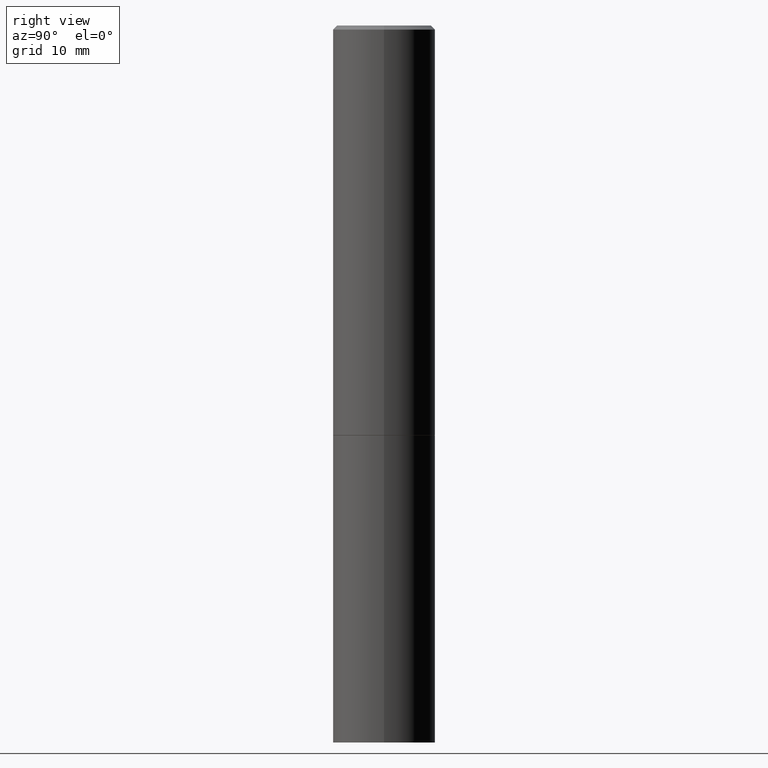
[diagram: clean part render]
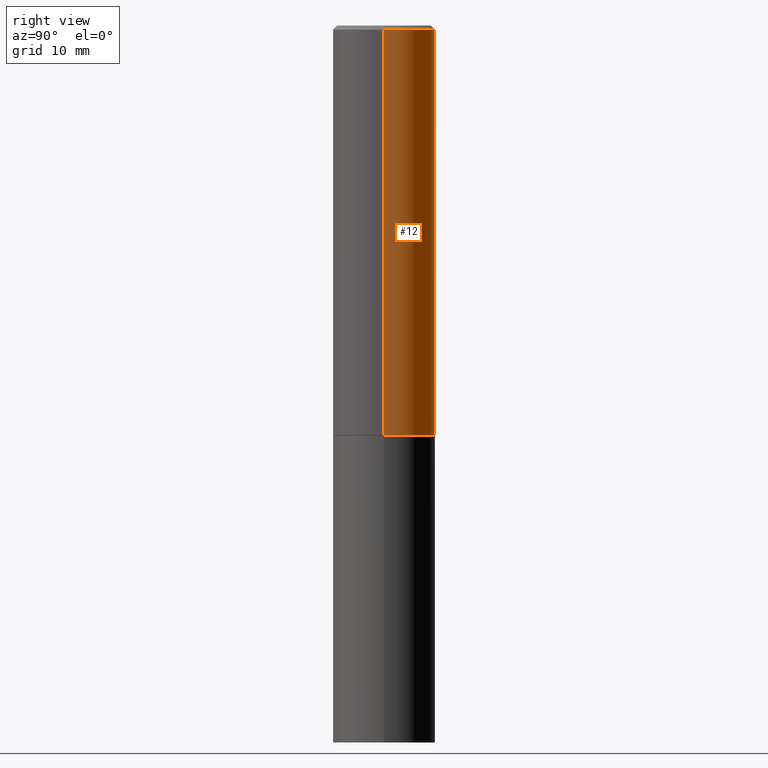
[diagram: same view with one face highlighted and labeled with its STEP entity id]
A machine part, right view. The second image highlights one B-rep face of the part: STEP entity #12.
In plain terms, the highlighted cylindrical surface (partial cylindrical patch) has radius 6.35 mm, axis along (-0, 0, 1).
Its self-contained STEP definition (entity closure, byte-faithful):
#2 = LINE ( 'NONE', #138, #258 ) ;
#6 = AXIS2_PLACEMENT_3D ( 'NONE', #304, #273, #74 ) ;
#8 = CARTESIAN_POINT ( 'NONE',  ( 0.2499999999999998057, -1.784954126219744611E-15, -0.02000000000000005940 ) ) ;
#9 = DIRECTION ( 'NONE',  ( -2.445468806185136877E-29, 3.491481338843145188E-15, 1.000000000000000000 ) ) ;
#12 = ADVANCED_FACE ( 'NONE', ( #178 ), #333, .T. ) ;
#13 = VECTOR ( 'NONE', #9, 39.37007874015748143 ) ;
#33 = CARTESIAN_POINT ( 'NONE',  ( -0.2499999999999998057, 1.675911042644702196E-15, -0.02000000000000005940 ) ) ;
#36 = CARTESIAN_POINT ( 'NONE',  ( 0.2499999999999998890, -1.745740669421565889E-15, 1.219044193948983388E-29 ) ) ;
#43 = AXIS2_PLACEMENT_3D ( 'NONE', #362, #113, #330 ) ;
#72 = VERTEX_POINT ( 'NONE', #33 ) ;
#74 = DIRECTION ( 'NONE',  ( 1.000000000000000000, -6.982962677686266711E-15, 4.876176775795935793E-29 ) ) ;
#102 = VERTEX_POINT ( 'NONE', #206 ) ;
#108 = EDGE_CURVE ( 'NONE', #325, #72, #2, .T. ) ;
#113 = DIRECTION ( 'NONE',  ( -2.445468806185136597E-29, 3.491481338843145583E-15, 1.000000000000000000 ) ) ;
#138 = CARTESIAN_POINT ( 'NONE',  ( -0.2499999999999998890, 1.776356839400249676E-15, -1.229733772563726025E-29 ) ) ;
#162 = EDGE_LOOP ( 'NONE', ( #358, #190, #306, #219 ) ) ;
#178 = FACE_OUTER_BOUND ( 'NONE', #162, .T. ) ;
#185 = DIRECTION ( 'NONE',  ( 1.000000000000000000, -6.982962677686266711E-15, 0.000000000000000000 ) ) ;
#190 = ORIENTED_EDGE ( 'NONE', *, *, #108, .T. ) ;
#193 = VERTEX_POINT ( 'NONE', #8 ) ;
#203 = CIRCLE ( 'NONE', #236, 0.2499999999999998057 ) ;
#206 = CARTESIAN_POINT ( 'NONE',  ( 0.2500000000000000000, -8.725211865769012469E-15, -1.998999999999999666 ) ) ;
#219 = ORIENTED_EDGE ( 'NONE', *, *, #317, .F. ) ;
#236 = AXIS2_PLACEMENT_3D ( 'NONE', #240, #319, #185 ) ;
#237 = CARTESIAN_POINT ( 'NONE',  ( -0.2500000000000000000, -1.748293572161903489E-15, -1.998999999999999666 ) ) ;
#240 = CARTESIAN_POINT ( 'NONE',  ( 4.890937612370288047E-31, -6.982962677686311331E-17, -0.02000000000000005940 ) ) ;
#258 = VECTOR ( 'NONE', #307, 39.37007874015748143 ) ;
#259 = LINE ( 'NONE', #36, #13 ) ;
#273 = DIRECTION ( 'NONE',  ( -2.445468806185136597E-29, 3.491481338843145583E-15, 1.000000000000000000 ) ) ;
#295 = EDGE_CURVE ( 'NONE', #102, #325, #308, .T. ) ;
#304 = CARTESIAN_POINT ( 'NONE',  ( 0.000000000000000000, 0.000000000000000000, 0.000000000000000000 ) ) ;
#306 = ORIENTED_EDGE ( 'NONE', *, *, #354, .F. ) ;
#307 = DIRECTION ( 'NONE',  ( -2.445468806185136877E-29, 3.491481338843145188E-15, 1.000000000000000000 ) ) ;
#308 = CIRCLE ( 'NONE', #43, 0.2500000000000000000 ) ;
#317 = EDGE_CURVE ( 'NONE', #102, #193, #259, .T. ) ;
#319 = DIRECTION ( 'NONE',  ( -2.445468806185136597E-29, 3.491481338843145583E-15, 1.000000000000000000 ) ) ;
#325 = VERTEX_POINT ( 'NONE', #237 ) ;
#330 = DIRECTION ( 'NONE',  ( 1.000000000000000000, -6.982962677686266711E-15, 0.000000000000000000 ) ) ;
#333 = CYLINDRICAL_SURFACE ( 'NONE', #6, 0.2499999999999998890 ) ;
#354 = EDGE_CURVE ( 'NONE', #193, #72, #203, .T. ) ;
#358 = ORIENTED_EDGE ( 'NONE', *, *, #295, .T. ) ;
#362 = CARTESIAN_POINT ( 'NONE',  ( 4.888492143564087030E-29, -6.979471196347446580E-15, -1.998999999999999666 ) ) ;